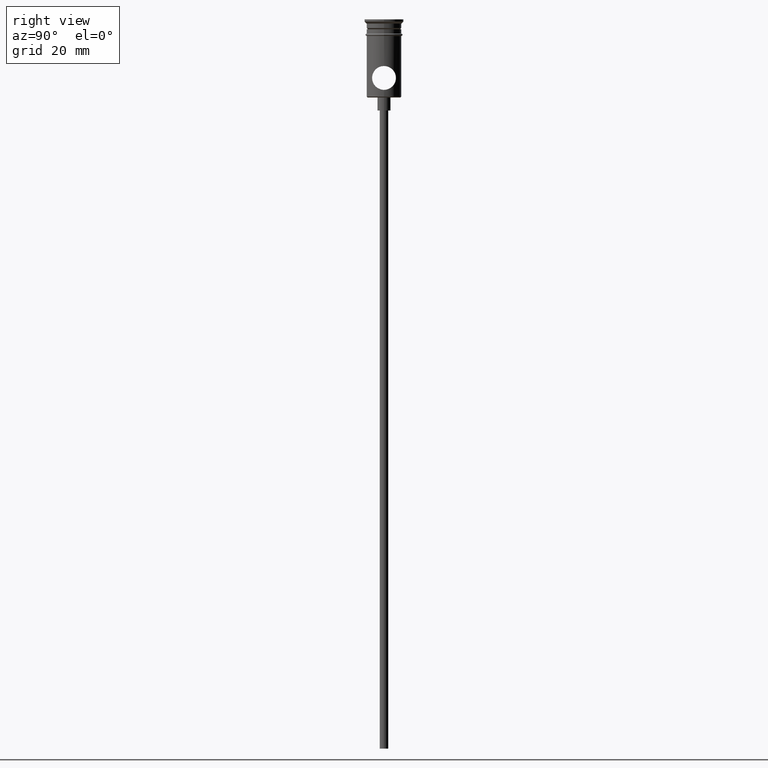
[diagram: clean part render]
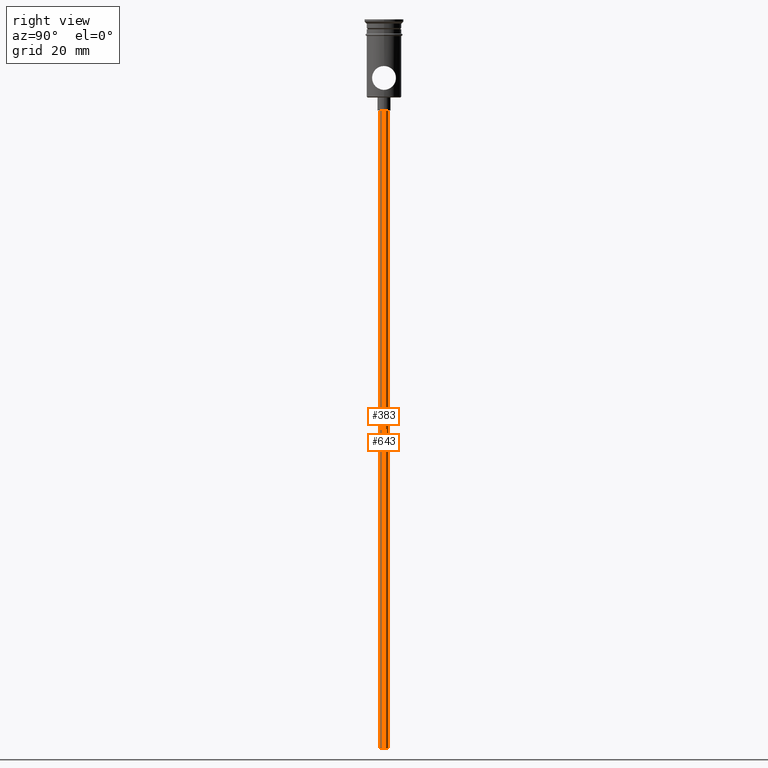
[diagram: same view with one multi-face feature highlighted, each face labeled with its STEP entity id]
A machine part, right view. The highlighted faces form ONE feature: a constant-radius fillet chain: 2 tangent blend faces with common blend radius 1 mm. The faces share edges in the B-rep.
Their STEP definitions:
[1] entity #643 (Cylinder):
#12 = VERTEX_POINT ( 'NONE', #740 ) ;
#35 = CARTESIAN_POINT ( 'NONE',  ( 0.000000000000000000, 0.000000000000000000, -20.99999999999999645 ) ) ;
#85 = ORIENTED_EDGE ( 'NONE', *, *, #317, .F. ) ;
#108 = CARTESIAN_POINT ( 'NONE',  ( 0.000000000000000000, 0.000000000000000000, -167.9999999999999716 ) ) ;
#239 = CIRCLE ( 'NONE', #726, 0.9999999999999997780 ) ;
#317 = EDGE_CURVE ( 'NONE', #1367, #850, #1099, .T. ) ;
#355 = DIRECTION ( 'NONE',  ( -0.000000000000000000, -0.000000000000000000, 1.000000000000000000 ) ) ;
#363 = DIRECTION ( 'NONE',  ( 1.000000000000000000, 0.000000000000000000, 0.000000000000000000 ) ) ;
#370 = EDGE_CURVE ( 'NONE', #1008, #850, #544, .T. ) ;
#466 = DIRECTION ( 'NONE',  ( -1.000000000000000000, 0.000000000000000000, 0.000000000000000000 ) ) ;
#480 = CARTESIAN_POINT ( 'NONE',  ( -0.9999999999999997780, 1.224646799147352961E-16, -20.99999999999999645 ) ) ;
#544 = CIRCLE ( 'NONE', #1348, 0.9999999999999997780 ) ;
#569 = DIRECTION ( 'NONE',  ( 0.000000000000000000, 0.000000000000000000, -1.000000000000000000 ) ) ;
#579 = CYLINDRICAL_SURFACE ( 'NONE', #1116, 0.9999999999999997780 ) ;
#597 = VECTOR ( 'NONE', #887, 1000.000000000000000 ) ;
#643 = ADVANCED_FACE ( 'NONE', ( #1345 ), #579, .T. ) ;
#676 = CARTESIAN_POINT ( 'NONE',  ( 0.9999999999999997780, 0.000000000000000000, -167.9999999999999716 ) ) ;
#688 = EDGE_LOOP ( 'NONE', ( #863, #926, #694, #85 ) ) ;
#694 = ORIENTED_EDGE ( 'NONE', *, *, #370, .T. ) ;
#726 = AXIS2_PLACEMENT_3D ( 'NONE', #108, #763, #882 ) ;
#740 = CARTESIAN_POINT ( 'NONE',  ( -0.9999999999999997780, 1.224646799147352961E-16, -167.9999999999999716 ) ) ;
#760 = LINE ( 'NONE', #1314, #955 ) ;
#763 = DIRECTION ( 'NONE',  ( 0.000000000000000000, 0.000000000000000000, -1.000000000000000000 ) ) ;
#780 = EDGE_CURVE ( 'NONE', #12, #1367, #239, .T. ) ;
#850 = VERTEX_POINT ( 'NONE', #866 ) ;
#861 = EDGE_CURVE ( 'NONE', #12, #1008, #760, .T. ) ;
#863 = ORIENTED_EDGE ( 'NONE', *, *, #780, .F. ) ;
#866 = CARTESIAN_POINT ( 'NONE',  ( 0.9999999999999997780, 0.000000000000000000, -20.99999999999999645 ) ) ;
#882 = DIRECTION ( 'NONE',  ( -1.000000000000000000, 0.000000000000000000, 0.000000000000000000 ) ) ;
#887 = DIRECTION ( 'NONE',  ( -0.000000000000000000, -0.000000000000000000, 1.000000000000000000 ) ) ;
#920 = CARTESIAN_POINT ( 'NONE',  ( 0.000000000000000000, 0.000000000000000000, -167.9999999999999716 ) ) ;
#926 = ORIENTED_EDGE ( 'NONE', *, *, #861, .T. ) ;
#955 = VECTOR ( 'NONE', #1085, 1000.000000000000000 ) ;
#1008 = VERTEX_POINT ( 'NONE', #480 ) ;
#1057 = CARTESIAN_POINT ( 'NONE',  ( 0.9999999999999997780, 0.000000000000000000, -167.9999999999999716 ) ) ;
#1085 = DIRECTION ( 'NONE',  ( -0.000000000000000000, -0.000000000000000000, 1.000000000000000000 ) ) ;
#1099 = LINE ( 'NONE', #676, #597 ) ;
#1116 = AXIS2_PLACEMENT_3D ( 'NONE', #920, #355, #363 ) ;
#1314 = CARTESIAN_POINT ( 'NONE',  ( -0.9999999999999997780, 1.224646799147352961E-16, -167.9999999999999716 ) ) ;
#1345 = FACE_OUTER_BOUND ( 'NONE', #688, .T. ) ;
#1348 = AXIS2_PLACEMENT_3D ( 'NONE', #35, #569, #466 ) ;
#1367 = VERTEX_POINT ( 'NONE', #1057 ) ;
[2] entity #383 (Cylinder):
#12 = VERTEX_POINT ( 'NONE', #740 ) ;
#53 = ORIENTED_EDGE ( 'NONE', *, *, #317, .T. ) ;
#73 = AXIS2_PLACEMENT_3D ( 'NONE', #1370, #911, #1264 ) ;
#169 = ORIENTED_EDGE ( 'NONE', *, *, #631, .T. ) ;
#213 = CIRCLE ( 'NONE', #73, 0.9999999999999997780 ) ;
#270 = DIRECTION ( 'NONE',  ( -0.000000000000000000, -0.000000000000000000, 1.000000000000000000 ) ) ;
#317 = EDGE_CURVE ( 'NONE', #1367, #850, #1099, .T. ) ;
#334 = CIRCLE ( 'NONE', #640, 0.9999999999999997780 ) ;
#383 = ADVANCED_FACE ( 'NONE', ( #833 ), #828, .T. ) ;
#427 = ORIENTED_EDGE ( 'NONE', *, *, #591, .F. ) ;
#480 = CARTESIAN_POINT ( 'NONE',  ( -0.9999999999999997780, 1.224646799147352961E-16, -20.99999999999999645 ) ) ;
#589 = ORIENTED_EDGE ( 'NONE', *, *, #861, .F. ) ;
#591 = EDGE_CURVE ( 'NONE', #1367, #12, #334, .T. ) ;
#597 = VECTOR ( 'NONE', #887, 1000.000000000000000 ) ;
#631 = EDGE_CURVE ( 'NONE', #850, #1008, #213, .T. ) ;
#636 = DIRECTION ( 'NONE',  ( 1.000000000000000000, 0.000000000000000000, 0.000000000000000000 ) ) ;
#640 = AXIS2_PLACEMENT_3D ( 'NONE', #1249, #822, #1025 ) ;
#676 = CARTESIAN_POINT ( 'NONE',  ( 0.9999999999999997780, 0.000000000000000000, -167.9999999999999716 ) ) ;
#707 = CARTESIAN_POINT ( 'NONE',  ( 0.000000000000000000, 0.000000000000000000, -167.9999999999999716 ) ) ;
#740 = CARTESIAN_POINT ( 'NONE',  ( -0.9999999999999997780, 1.224646799147352961E-16, -167.9999999999999716 ) ) ;
#760 = LINE ( 'NONE', #1314, #955 ) ;
#822 = DIRECTION ( 'NONE',  ( 0.000000000000000000, 0.000000000000000000, -1.000000000000000000 ) ) ;
#828 = CYLINDRICAL_SURFACE ( 'NONE', #1323, 0.9999999999999997780 ) ;
#833 = FACE_OUTER_BOUND ( 'NONE', #840, .T. ) ;
#840 = EDGE_LOOP ( 'NONE', ( #589, #427, #53, #169 ) ) ;
#850 = VERTEX_POINT ( 'NONE', #866 ) ;
#861 = EDGE_CURVE ( 'NONE', #12, #1008, #760, .T. ) ;
#866 = CARTESIAN_POINT ( 'NONE',  ( 0.9999999999999997780, 0.000000000000000000, -20.99999999999999645 ) ) ;
#887 = DIRECTION ( 'NONE',  ( -0.000000000000000000, -0.000000000000000000, 1.000000000000000000 ) ) ;
#911 = DIRECTION ( 'NONE',  ( 0.000000000000000000, 0.000000000000000000, -1.000000000000000000 ) ) ;
#955 = VECTOR ( 'NONE', #1085, 1000.000000000000000 ) ;
#1008 = VERTEX_POINT ( 'NONE', #480 ) ;
#1025 = DIRECTION ( 'NONE',  ( -1.000000000000000000, 0.000000000000000000, 0.000000000000000000 ) ) ;
#1057 = CARTESIAN_POINT ( 'NONE',  ( 0.9999999999999997780, 0.000000000000000000, -167.9999999999999716 ) ) ;
#1085 = DIRECTION ( 'NONE',  ( -0.000000000000000000, -0.000000000000000000, 1.000000000000000000 ) ) ;
#1099 = LINE ( 'NONE', #676, #597 ) ;
#1249 = CARTESIAN_POINT ( 'NONE',  ( 0.000000000000000000, 0.000000000000000000, -167.9999999999999716 ) ) ;
#1264 = DIRECTION ( 'NONE',  ( -1.000000000000000000, 0.000000000000000000, 0.000000000000000000 ) ) ;
#1314 = CARTESIAN_POINT ( 'NONE',  ( -0.9999999999999997780, 1.224646799147352961E-16, -167.9999999999999716 ) ) ;
#1323 = AXIS2_PLACEMENT_3D ( 'NONE', #707, #270, #636 ) ;
#1367 = VERTEX_POINT ( 'NONE', #1057 ) ;
#1370 = CARTESIAN_POINT ( 'NONE',  ( 0.000000000000000000, 0.000000000000000000, -20.99999999999999645 ) ) ;